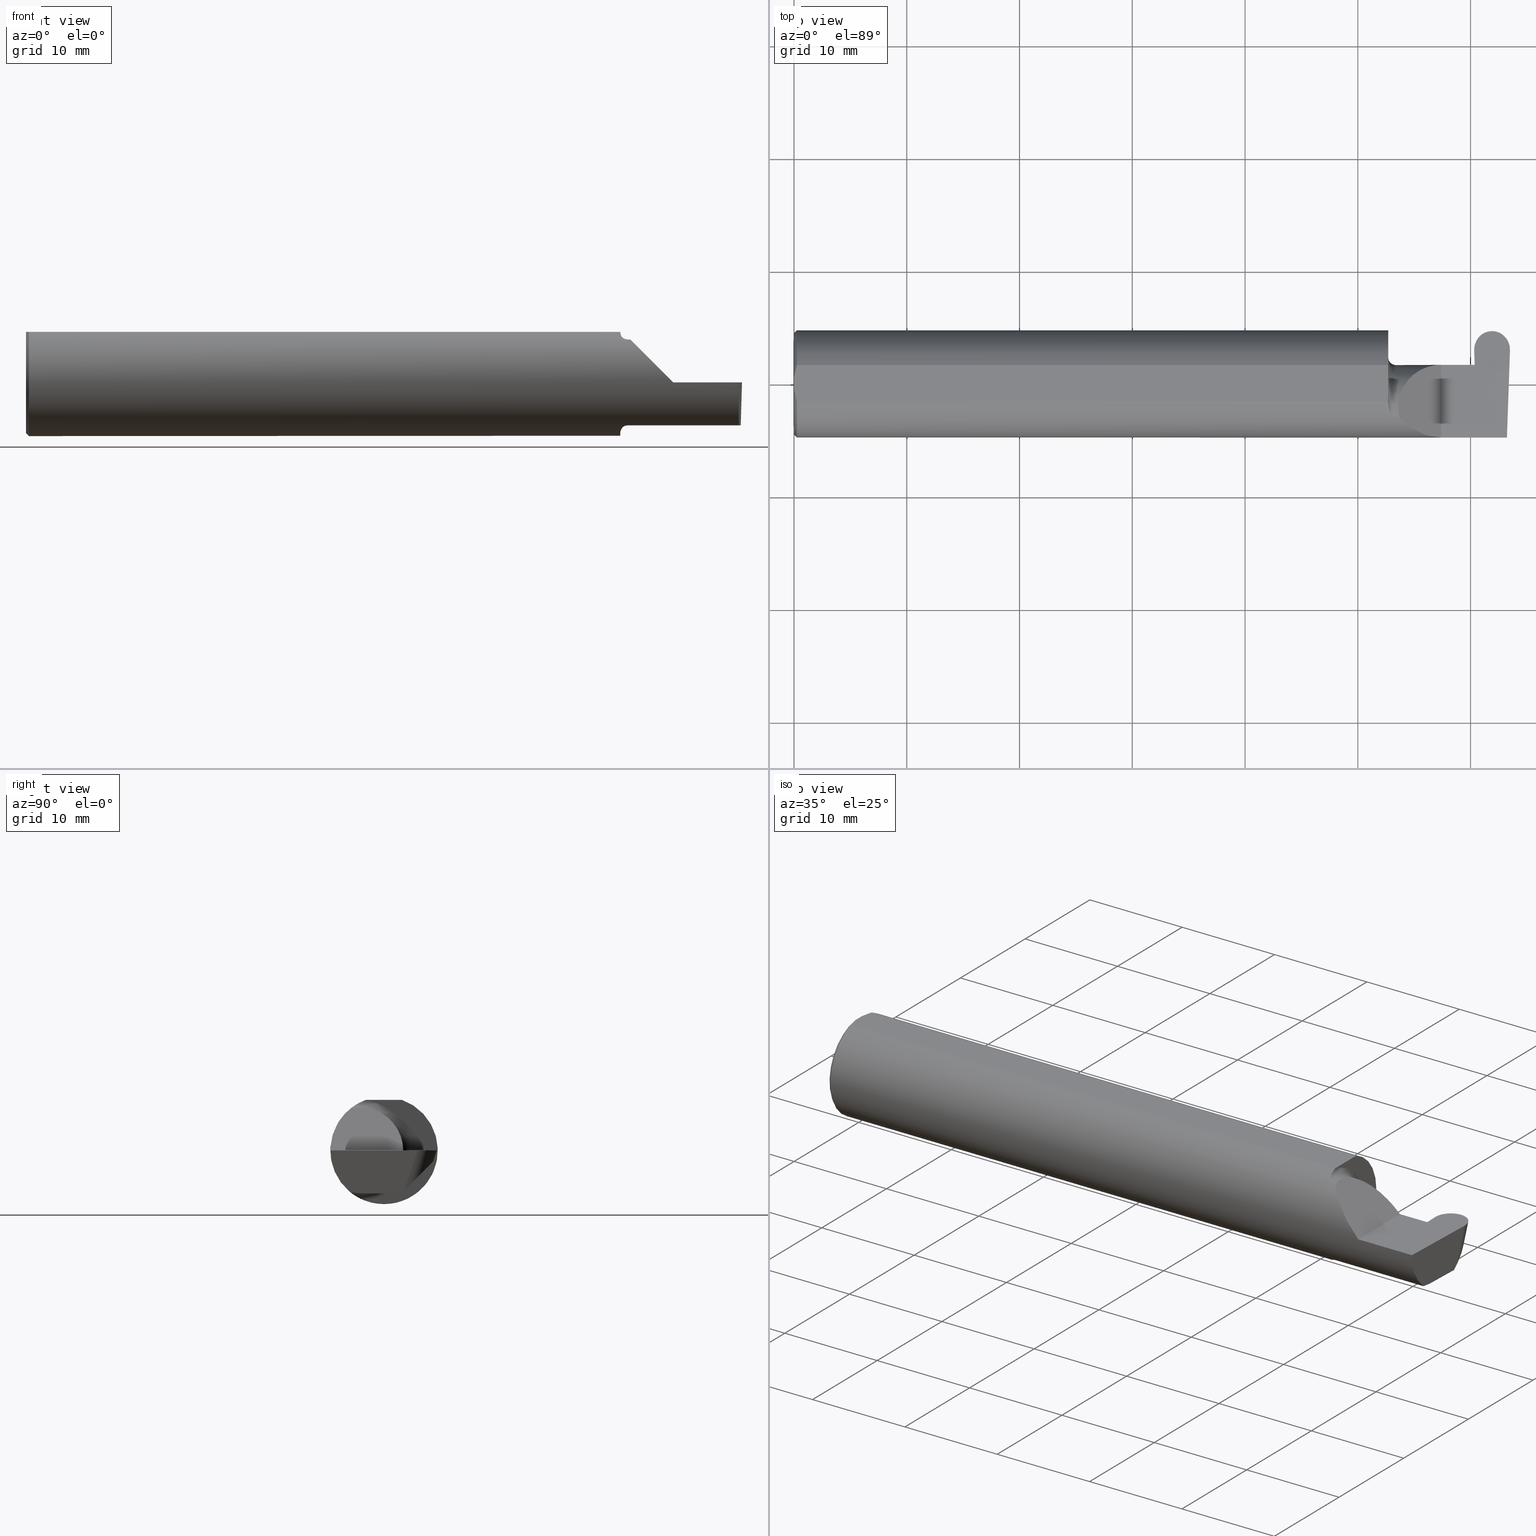
[diagram: canonical four-view strip — front | top / right | iso, engineering-drawing reading convention]
A machine part, canonical four-view strip (front | top / right | iso — engineering-drawing reading convention). The complete STEP part file that produces these views, byte-faithful:
ISO-10303-21;
HEADER;
FILE_DESCRIPTION (( 'STEP AP203' ),
    '1' );
FILE_NAME ('222206-GFR124-6.STEP',
    '2024-06-28T18:57:38',
    ( '' ),
    ( '' ),
    'SwSTEP 2.0',
    'SolidWorks 2024',
    '' );
FILE_SCHEMA (( 'CONFIG_CONTROL_DESIGN' ));
ENDSEC;

DATA;
#1 = CARTESIAN_POINT ( 'NONE',  ( 2.367467983378090057, 0.06661954135095479734, -0.001744974835126142116 ) ) ;
#2 = DIRECTION ( 'NONE',  ( -0.03489949670249638952, 0.9993908270190959842, 0.000000000000000000 ) ) ;
#3 = VERTEX_POINT ( 'NONE', #136 ) ;
#4 = CARTESIAN_POINT ( 'NONE',  ( 0.009999999999999346217, 0.06325108694718235836, 0.1763499999999999235 ) ) ;
#5 = PLANE ( 'NONE',  #91 ) ;
#6 = ORIENTED_EDGE ( 'NONE', *, *, #312, .F. ) ;
#7 = EDGE_CURVE ( 'NONE', #3, #99, #193, .T. ) ;
#8 = DIRECTION ( 'NONE',  ( -0.01806954526206913311, 0.01744955702544860598, 0.9996844524616943506 ) ) ;
#9 = VECTOR ( 'NONE', #116, 39.37007874015748143 ) ;
#10 = LOCAL_TIME ( 11, 57, 38.00000000000000000, #473 ) ;
#11 = CARTESIAN_POINT ( 'NONE',  ( 0.000000000000000000, 0.01880691362239451242, 0.1763499999999999235 ) ) ;
#12 =( BOUNDED_CURVE ( )  B_SPLINE_CURVE ( 3, ( #490, #353, #678, #235 ),
 .UNSPECIFIED., .F., .F. ) 
 B_SPLINE_CURVE_WITH_KNOTS ( ( 4, 4 ),
 ( 3.135912951325162457, 4.726229945297544255 ),
 .UNSPECIFIED. ) 
 CURVE ( )  GEOMETRIC_REPRESENTATION_ITEM ( )  RATIONAL_B_SPLINE_CURVE ( ( 1.000000000000000000, 0.8001144080103665956, 0.8001144080103665956, 1.000000000000000000 ) ) 
 REPRESENTATION_ITEM ( '' )  );
#13 = ORIENTED_EDGE ( 'NONE', *, *, #497, .F. ) ;
#14 = CARTESIAN_POINT ( 'NONE',  ( 2.490246926064548560, -0.08334999999999932740, -0.1500000000000000500 ) ) ;
#15 = LINE ( 'NONE', #433, #77 ) ;
#16 = ORIENTED_EDGE ( 'NONE', *, *, #398, .T. ) ;
#17 = CARTESIAN_POINT ( 'NONE',  ( 2.367407066079999733, 0.06655862405286432082, -0.005234924505378421578 ) ) ;
#18 = FACE_OUTER_BOUND ( 'NONE', #633, .T. ) ;
#19 = ORIENTED_EDGE ( 'NONE', *, *, #379, .F. ) ;
#20 = PLANE ( 'NONE',  #66 ) ;
#21 = ADVANCED_BREP_SHAPE_REPRESENTATION ( '222206-GFR124-6', ( #174, #246 ), #92 ) ;
#23 = CYLINDRICAL_SURFACE ( 'NONE', #656, 0.1873499999999999888 ) ;
#22 = VECTOR ( 'NONE', #451, 39.37007874015748143 ) ;
#24 = AXIS2_PLACEMENT_3D ( 'NONE', #457, #182, #352 ) ;
#25 = ORIENTED_EDGE ( 'NONE', *, *, #629, .F. ) ;
#26 = EDGE_CURVE ( 'NONE', #346, #449, #270, .T. ) ;
#27 = ADVANCED_FACE ( 'NONE', ( #679 ), #298, .T. ) ;
#28 = CARTESIAN_POINT ( 'NONE',  ( 2.399346682163034483, 0.1846500000000000363, 1.238963249943321985E-17 ) ) ;
#29 = CARTESIAN_POINT ( 'NONE',  ( 2.490542817754151539, -0.07487677063221309659, -0.1500000000000000500 ) ) ;
#30 = CARTESIAN_POINT ( 'NONE',  ( 2.113883229301068312, -0.1172600179964004702, 0.1461167706989303927 ) ) ;
#31 = LINE ( 'NONE', #303, #620 ) ;
#32 = CARTESIAN_POINT ( 'NONE',  ( 2.374762147380223620, 0.1198259601510516803, 0.000000000000000000 ) ) ;
#33 = CARTESIAN_POINT ( 'NONE',  ( 2.100000000000000089, -0.1172600179964002620, -0.1461167706989305870 ) ) ;
#34 = CARTESIAN_POINT ( 'NONE',  ( 2.374857090704703300, 0.1171071390637349607, 0.000000000000000000 ) ) ;
#35 = EDGE_CURVE ( 'NONE', #542, #491, #694, .T. ) ;
#36 = LINE ( 'NONE', #32, #632 ) ;
#37 = AXIS2_PLACEMENT_3D ( 'NONE', #455, #505, #560 ) ;
#38 = VECTOR ( 'NONE', #243, 39.37007874015748143 ) ;
#39 = CARTESIAN_POINT ( 'NONE',  ( -3.937007874019685528E-05, 0.1723030515431495657, -0.03799999999999999906 ) ) ;
#40 = ORIENTED_EDGE ( 'NONE', *, *, #358, .F. ) ;
#41 = CARTESIAN_POINT ( 'NONE',  ( 2.100000000000000089, -0.1172600179964002620, -0.1461167706989305870 ) ) ;
#42 = ORIENTED_EDGE ( 'NONE', *, *, #570, .T. ) ;
#43 = DATE_TIME_ROLE ( 'classification_date' ) ;
#44 = DIRECTION ( 'NONE',  ( -0.01806954526206913311, 0.01744955702544860598, 0.9996844524616943506 ) ) ;
#45 = VECTOR ( 'NONE', #385, 39.37007874015748143 ) ;
#46 = ORIENTED_EDGE ( 'NONE', *, *, #252, .F. ) ;
#47 = EDGE_CURVE ( 'NONE', #391, #206, #703, .T. ) ;
#48 = CARTESIAN_POINT ( 'NONE',  ( 2.113883229301068312, -0.1172600179964004702, 0.1461167706989303927 ) ) ;
#49 = VERTEX_POINT ( 'NONE', #190 ) ;
#50 = COORDINATED_UNIVERSAL_TIME_OFFSET ( 8, 0, .BEHIND. ) ;
#51 = CARTESIAN_POINT ( 'NONE',  ( 2.376870704983649496, 0.1941529779698624170, -0.01615007357328690149 ) ) ;
#52 = ORIENTED_EDGE ( 'NONE', *, *, #527, .T. ) ;
#53 = CALENDAR_DATE ( 2024, 28, 6 ) ;
#54 = CARTESIAN_POINT ( 'NONE',  ( 2.379376900814294871, -0.08346159389558670261, -0.1500000000000000500 ) ) ;
#55 = EDGE_CURVE ( 'NONE', #397, #206, #553, .T. ) ;
#56 = VERTEX_POINT ( 'NONE', #437 ) ;
#57 = CARTESIAN_POINT ( 'NONE',  ( 0.000000000000000000, 0.000000000000000000, -0.1773500000000005072 ) ) ;
#58 = VERTEX_POINT ( 'NONE', #548 ) ;
#59 = CARTESIAN_POINT ( 'NONE',  ( 2.374834014638854018, 0.1173673719240848484, 0.0008009143901308528714 ) ) ;
#60 = DIRECTION ( 'NONE',  ( 0.000000000000000000, 0.000000000000000000, -1.000000000000000000 ) ) ;
#61 = ORIENTED_EDGE ( 'NONE', *, *, #251, .T. ) ;
#62 = CARTESIAN_POINT ( 'NONE',  ( 2.237361995000000103, -0.1172600179964005118, 0.1461167706989304482 ) ) ;
#63 = CARTESIAN_POINT ( 'NONE',  ( 2.376713715390371462, 0.06655862405286659678, -0.005234924505376353787 ) ) ;
#64 = VERTEX_POINT ( 'NONE', #11 ) ;
#65 = DIRECTION ( 'NONE',  ( 0.000000000000000000, 1.000000000000000000, 0.000000000000000000 ) ) ;
#66 = AXIS2_PLACEMENT_3D ( 'NONE', #131, #510, #677 ) ;
#67 = CARTESIAN_POINT ( 'NONE',  ( 2.083475602106621860, -0.1064978748893402188, 0.1542035505680386387 ) ) ;
#68 = ORIENTED_EDGE ( 'NONE', *, *, #146, .T. ) ;
#69 = FACE_OUTER_BOUND ( 'NONE', #318, .T. ) ;
#70 = DIRECTION ( 'NONE',  ( 0.9992386149554828290, 0.03489418134010909001, 0.01745240643728358798 ) ) ;
#71 = ORIENTED_EDGE ( 'NONE', *, *, #261, .F. ) ;
#72 = DIRECTION ( 'NONE',  ( 1.000000000000000000, 0.000000000000000000, 0.000000000000000000 ) ) ;
#73 = CARTESIAN_POINT ( 'NONE',  ( 2.376619092827160884, 0.06665000000000001479, 0.000000000000000000 ) ) ;
#74 = ADVANCED_FACE ( 'NONE', ( #496 ), #654, .F. ) ;
#75 = ADVANCED_FACE ( 'NONE', ( #18 ), #163, .F. ) ;
#76 = ORIENTED_EDGE ( 'NONE', *, *, #406, .F. ) ;
#77 = VECTOR ( 'NONE', #213, 39.37007874015748143 ) ;
#79 = CARTESIAN_POINT ( 'NONE',  ( 2.367407066079999733, 0.06655862405286432082, -0.005234924505378421578 ) ) ;
#78 = CONICAL_SURFACE ( 'NONE', #383, 0.1773500000000005072, 0.7853981633974551624 ) ;
#80 = VECTOR ( 'NONE', #543, 39.37007874015748143 ) ;
#81 = ORIENTED_EDGE ( 'NONE', *, *, #107, .F. ) ;
#82 = APPLICATION_PROTOCOL_DEFINITION ( 'international standard', 'config_control_design', 1994, #610 ) ;
#83 = LINE ( 'NONE', #301, #38 ) ;
#84 = ADVANCED_FACE ( 'NONE', ( #396 ), #227, .F. ) ;
#85 = CARTESIAN_POINT ( 'NONE',  ( 2.075000000000000178, -0.08335000000000010456, 0.000000000000000000 ) ) ;
#86 = EDGE_CURVE ( 'NONE', #106, #491, #15, .T. ) ;
#87 = CARTESIAN_POINT ( 'NONE',  ( 0.000000000000000000, 0.000000000000000000, 0.000000000000000000 ) ) ;
#88 = CARTESIAN_POINT ( 'NONE',  ( 0.000000000000000000, -0.01880691362239451242, 0.1763499999999999235 ) ) ;
#89 = DIRECTION ( 'NONE',  ( 0.000000000000000000, -0.7071067811865516806, 0.7071067811865434649 ) ) ;
#90 = FACE_OUTER_BOUND ( 'NONE', #195, .T. ) ;
#91 = AXIS2_PLACEMENT_3D ( 'NONE', #175, #386, #218 ) ;
#92 =( GEOMETRIC_REPRESENTATION_CONTEXT ( 3 ) GLOBAL_UNCERTAINTY_ASSIGNED_CONTEXT ( ( #370 ) ) GLOBAL_UNIT_ASSIGNED_CONTEXT ( ( #233, #613, #552 ) ) REPRESENTATION_CONTEXT ( 'NONE', 'WORKASPACE' ) );
#93 = CC_DESIGN_PERSON_AND_ORGANIZATION_ASSIGNMENT ( #465, #192, ( #541 ) ) ;
#94 = CARTESIAN_POINT ( 'NONE',  ( 2.437361994999999837, 0.1742461545025663638, -0.03201743511553396121 ) ) ;
#95 = VERTEX_POINT ( 'NONE', #278 ) ;
#96 =( BOUNDED_CURVE ( )  B_SPLINE_CURVE ( 3, ( #639, #207, #94, #150 ),
 .UNSPECIFIED., .F., .F. ) 
 B_SPLINE_CURVE_WITH_KNOTS ( ( 4, 4 ),
 ( 4.712388980384692339, 4.720665141031028966 ),
 .UNSPECIFIED. ) 
 CURVE ( )  GEOMETRIC_REPRESENTATION_ITEM ( )  RATIONAL_B_SPLINE_CURVE ( ( 1.000000000000000000, 0.9999942921052247247, 0.9999942921052247247, 1.000000000000000000 ) ) 
 REPRESENTATION_ITEM ( '' )  );
#97 = COORDINATED_UNIVERSAL_TIME_OFFSET ( 8, 0, .BEHIND. ) ;
#98 = CARTESIAN_POINT ( 'NONE',  ( 2.490246926064548560, -0.08334999999999932740, -0.1500000000000000500 ) ) ;
#99 = VERTEX_POINT ( 'NONE', #390 ) ;
#100 = DATE_TIME_ROLE ( 'creation_date' ) ;
#101 = DIRECTION ( 'NONE',  ( 0.000000000000000000, 0.000000000000000000, -1.000000000000000000 ) ) ;
#102 = AXIS2_PLACEMENT_3D ( 'NONE', #539, #596, #661 ) ;
#103 = EDGE_LOOP ( 'NONE', ( #365, #439, #430 ) ) ;
#104 = DATE_AND_TIME ( #264, #395 ) ;
#105 = CARTESIAN_POINT ( 'NONE',  ( 0.000000000000000000, 0.000000000000000000, 0.000000000000000000 ) ) ;
#106 = VERTEX_POINT ( 'NONE', #171 ) ;
#107 = EDGE_CURVE ( 'NONE', #391, #58, #161, .T. ) ;
#108 = DIRECTION ( 'NONE',  ( -1.000000000000000000, -3.417954624266474541E-16, -0.000000000000000000 ) ) ;
#109 = ORIENTED_EDGE ( 'NONE', *, *, #568, .T. ) ;
#110 = CARTESIAN_POINT ( 'NONE',  ( 3.749399456654646757E-32, -0.1873499999999999610, 3.061616997868383634E-16 ) ) ;
#111 = ORIENTED_EDGE ( 'NONE', *, *, #7, .T. ) ;
#112 = CONICAL_SURFACE ( 'NONE', #188, 0.1773500000000005072, 0.7853981633974551624 ) ;
#113 = DIRECTION ( 'NONE',  ( 1.000000000000000000, 3.417954624266474541E-16, 0.000000000000000000 ) ) ;
#114 = PLANE ( 'NONE',  #456 ) ;
#115 = ORIENTED_EDGE ( 'NONE', *, *, #416, .F. ) ;
#116 = DIRECTION ( 'NONE',  ( -1.000000000000000000, -0.000000000000000000, -0.000000000000000000 ) ) ;
#117 = CARTESIAN_POINT ( 'NONE',  ( 2.379376865616626535, -0.08334999999999999354, -0.1500000000000000500 ) ) ;
#118 = ORIENTED_EDGE ( 'NONE', *, *, #228, .F. ) ;
#119 = DIRECTION ( 'NONE',  ( 1.000000000000000000, 3.417954624266474541E-16, 0.000000000000000000 ) ) ;
#120 = CARTESIAN_POINT ( 'NONE',  ( 2.075000000000000178, -0.06851976604679038685, -0.1743704796142199753 ) ) ;
#121 = ORIENTED_EDGE ( 'NONE', *, *, #358, .T. ) ;
#122 = DIRECTION ( 'NONE',  ( 1.000000000000000000, -0.000000000000000000, -0.000000000000000000 ) ) ;
#123 = AXIS2_PLACEMENT_3D ( 'NONE', #589, #113, #65 ) ;
#124 = CARTESIAN_POINT ( 'NONE',  ( 2.374762147380223620, 0.1198259601510516803, 0.000000000000000000 ) ) ;
#125 = ORIENTED_EDGE ( 'NONE', *, *, #570, .F. ) ;
#126 = ADVANCED_FACE ( 'NONE', ( #286 ), #114, .F. ) ;
#127 = CARTESIAN_POINT ( 'NONE',  ( 2.260000000000000231, 0.06665000000000001479, 5.204748896376252548E-17 ) ) ;
#128 = ADVANCED_FACE ( 'NONE', ( #593 ), #5, .T. ) ;
#129 = CARTESIAN_POINT ( 'NONE',  ( 2.090028532764138802, -0.1137241120808232947, -0.1488947809299406011 ) ) ;
#130 = VERTEX_POINT ( 'NONE', #659 ) ;
#131 = CARTESIAN_POINT ( 'NONE',  ( -3.937007874019685528E-05, 0.1846500000000000363, 0.000000000000000000 ) ) ;
#132 = DIRECTION ( 'NONE',  ( 1.000000000000000000, -9.360105070766659852E-16, -0.000000000000000000 ) ) ;
#133 = CARTESIAN_POINT ( 'NONE',  ( 2.150065971957464850, -0.1623470442677541759, 0.1099340280425337851 ) ) ;
#134 = CARTESIAN_POINT ( 'NONE',  ( 0.000000000000000000, 0.000000000000000000, 0.000000000000000000 ) ) ;
#135 = APPROVAL_PERSON_ORGANIZATION ( #645, #259, #157 ) ;
#136 = CARTESIAN_POINT ( 'NONE',  ( 2.260000000000000231, -0.1873499999999999888, 2.939152317953647352E-17 ) ) ;
#137 = DIRECTION ( 'NONE',  ( 0.000000000000000000, 0.000000000000000000, -1.000000000000000000 ) ) ;
#138 = CARTESIAN_POINT ( 'NONE',  ( 2.075000000000000622, 0.06655862405286504246, -0.005234924505354759082 ) ) ;
#139 = ORIENTED_EDGE ( 'NONE', *, *, #431, .T. ) ;
#140 = DIRECTION ( 'NONE',  ( -3.417954624266474541E-16, 1.000000000000000000, 0.000000000000000000 ) ) ;
#141 = CARTESIAN_POINT ( 'NONE',  ( 2.488225324098681579, -0.1873500000000000165, -0.05781030015605125721 ) ) ;
#142 = PERSON_AND_ORGANIZATION ( #438, #646 ) ;
#143 = CARTESIAN_POINT ( 'NONE',  ( 2.374857090704703300, 0.1171071390637349607, 0.000000000000000000 ) ) ;
#144 = ORIENTED_EDGE ( 'NONE', *, *, #55, .T. ) ;
#145 = CALENDAR_DATE ( 2024, 28, 6 ) ;
#146 = EDGE_CURVE ( 'NONE', #211, #184, #561, .T. ) ;
#147 = CARTESIAN_POINT ( 'NONE',  ( 2.475377307836965635, 0.1846499999999998975, 3.884071369074584472E-18 ) ) ;
#148 = ORIENTED_EDGE ( 'NONE', *, *, #168, .F. ) ;
#149 = APPROVAL_ROLE ( '' ) ;
#150 = CARTESIAN_POINT ( 'NONE',  ( 2.437361994999999837, 0.1722997177119685586, -0.03800333383118100622 ) ) ;
#151 = ORIENTED_EDGE ( 'NONE', *, *, #7, .F. ) ;
#152 = PERSON_AND_ORGANIZATION ( #438, #646 ) ;
#153 = PLANE ( 'NONE',  #567 ) ;
#154 = AXIS2_PLACEMENT_3D ( 'NONE', #362, #304, #292 ) ;
#155 = EDGE_CURVE ( 'NONE', #449, #394, #12, .T. ) ;
#156 = VERTEX_POINT ( 'NONE', #281 ) ;
#157 = APPROVAL_ROLE ( '' ) ;
#158 = ORIENTED_EDGE ( 'NONE', *, *, #306, .T. ) ;
#159 = CARTESIAN_POINT ( 'NONE',  ( 2.075000000000000178, -0.06851976604679038685, 0.1743704796142199753 ) ) ;
#160 = ORIENTED_EDGE ( 'NONE', *, *, #424, .F. ) ;
#161 = B_SPLINE_CURVE_WITH_KNOTS ( 'NONE', 3,
 ( #671, #338, #223, #599, #544, #231, #67, #441, #180, #429, #484, #382 ),
 .UNSPECIFIED., .F., .F.,
 ( 4, 2, 2, 2, 2, 4 ),
 ( 4.423516731081017750E-05, 0.0004615475116586720055, 0.0008788598560065338404, 0.001296172200354395784, 0.001504828372528326701, 0.001713484544702257618 ),
 .UNSPECIFIED. ) ;
#162 = DIRECTION ( 'NONE',  ( 0.02739170151060085767, -0.3089010440752013587, -0.9506996579664918068 ) ) ;
#163 = PLANE ( 'NONE',  #316 ) ;
#164 = CLOSED_SHELL ( 'NONE', ( #640, #327, #198, #687, #177, #506, #126, #368, #651, #601, #128, #74, #707, #653, #75, #84, #466, #27, #487 ) ) ;
#165 = ORIENTED_EDGE ( 'NONE', *, *, #215, .T. ) ;
#166 = VECTOR ( 'NONE', #162, 39.37007874015748143 ) ;
#167 = LINE ( 'NONE', #57, #80 ) ;
#168 = EDGE_CURVE ( 'NONE', #529, #690, #356, .T. ) ;
#169 = VERTEX_POINT ( 'NONE', #297 ) ;
#170 = CARTESIAN_POINT ( 'NONE',  ( 2.367498442027135663, 0.06665000000000002867, 0.000000000000000000 ) ) ;
#171 = CARTESIAN_POINT ( 'NONE',  ( 2.075000000000000178, 0.06325108694718235836, 0.1763499999999999235 ) ) ;
#172 = ORIENTED_EDGE ( 'NONE', *, *, #228, .T. ) ;
#173 = CARTESIAN_POINT ( 'NONE',  ( 0.009999999999999346217, 0.06325108694718235836, 0.1763499999999999235 ) ) ;
#174 = MANIFOLD_SOLID_BREP ( 'Radii', #164 ) ;
#175 = CARTESIAN_POINT ( 'NONE',  ( 2.075000000000000178, 0.1873499999999999610, 0.000000000000000000 ) ) ;
#176 = ORIENTED_EDGE ( 'NONE', *, *, #617, .T. ) ;
#177 = ADVANCED_FACE ( 'NONE', ( #90 ), #308, .F. ) ;
#178 = AXIS2_PLACEMENT_3D ( 'NONE', #134, #508, #631 ) ;
#179 = DIRECTION ( 'NONE',  ( -0.7071067811865441310, 0.000000000000000000, -0.7071067811865510144 ) ) ;
#180 = CARTESIAN_POINT ( 'NONE',  ( 2.090004157323697598, -0.1137044537483313106, 0.1489098419202430912 ) ) ;
#181 = ORIENTED_EDGE ( 'NONE', *, *, #568, .F. ) ;
#182 = DIRECTION ( 'NONE',  ( -1.000000000000000000, -3.417954624266474541E-16, -0.000000000000000000 ) ) ;
#183 = FACE_OUTER_BOUND ( 'NONE', #498, .T. ) ;
#184 = VERTEX_POINT ( 'NONE', #240 ) ;
#185 = EDGE_CURVE ( 'NONE', #287, #517, #336, .T. ) ;
#186 = CARTESIAN_POINT ( 'NONE',  ( 2.379376865616626535, -0.08334999999999999354, -0.1500000000000000500 ) ) ;
#187 = CARTESIAN_POINT ( 'NONE',  ( 2.375802096645578398, 0.1301396316170285450, -0.08016341992612147083 ) ) ;
#189 = CARTESIAN_POINT ( 'NONE',  ( 0.009999999999999346217, -0.06325108694718235836, 0.1763499999999999235 ) ) ;
#188 = AXIS2_PLACEMENT_3D ( 'NONE', #87, #72, #137 ) ;
#190 = CARTESIAN_POINT ( 'NONE',  ( 2.437361994999999393, 0.1781371089828285015, -0.02004461746296542710 ) ) ;
#191 = LINE ( 'NONE', #29, #22 ) ;
#192 = PERSON_AND_ORGANIZATION_ROLE ( 'design_owner' ) ;
#193 =( BOUNDED_CURVE ( )  B_SPLINE_CURVE ( 3, ( #400, #615, #133, #30 ),
 .UNSPECIFIED., .F., .F. ) 
 B_SPLINE_CURVE_WITH_KNOTS ( ( 4, 4 ),
 ( 4.712388980384688786, 5.606916381293137519 ),
 .UNSPECIFIED. ) 
 CURVE ( )  GEOMETRIC_REPRESENTATION_ITEM ( )  RATIONAL_B_SPLINE_CURVE ( ( 1.000000000000000000, 0.9344226172588800949, 0.9344226172588800949, 1.000000000000000000 ) ) 
 REPRESENTATION_ITEM ( '' )  );
#194 = CARTESIAN_POINT ( 'NONE',  ( 0.001595548104417217512, -0.03385300050298979679, 0.1763499999999999235 ) ) ;
#195 = EDGE_LOOP ( 'NONE', ( #418, #638, #71, #148, #329, #118, #549, #160, #460 ) ) ;
#196 = EDGE_CURVE ( 'NONE', #56, #130, #563, .T. ) ;
#197 = SHAPE_DEFINITION_REPRESENTATION ( #485, #21 ) ;
#198 = ADVANCED_FACE ( 'NONE', ( #183 ), #23, .T. ) ;
#199 = DIRECTION ( 'NONE',  ( 0.01806679408117584443, 0.000000000000000000, -0.9998367821557817559 ) ) ;
#200 = VECTOR ( 'NONE', #44, 39.37007874015748854 ) ;
#201 = EDGE_LOOP ( 'NONE', ( #535, #25, #109, #263 ) ) ;
#202 = PERSON_AND_ORGANIZATION ( #438, #646 ) ;
#203 = CARTESIAN_POINT ( 'NONE',  ( 2.260000000000000231, 0.06665000000000001479, 5.204748896376252548E-17 ) ) ;
#204 = ORIENTED_EDGE ( 'NONE', *, *, #276, .T. ) ;
#205 = DIRECTION ( 'NONE',  ( -1.000000000000000000, -3.417954624266474541E-16, -0.000000000000000000 ) ) ;
#206 = VERTEX_POINT ( 'NONE', #511 ) ;
#207 = CARTESIAN_POINT ( 'NONE',  ( 2.437361994999999837, 0.1761919626993214971, -0.02603116215711245157 ) ) ;
#208 = VECTOR ( 'NONE', #122, 39.37007874015748143 ) ;
#209 = ORIENTED_EDGE ( 'NONE', *, *, #591, .T. ) ;
#210 = CARTESIAN_POINT ( 'NONE',  ( 2.376619092827160884, 0.06665000000000001479, 0.000000000000000000 ) ) ;
#211 = VERTEX_POINT ( 'NONE', #186 ) ;
#212 = CYLINDRICAL_SURFACE ( 'NONE', #102, 0.1500000000000000777 ) ;
#213 = DIRECTION ( 'NONE',  ( -1.000000000000000000, -0.000000000000000000, -0.000000000000000000 ) ) ;
#214 = ORIENTED_EDGE ( 'NONE', *, *, #446, .T. ) ;
#215 = EDGE_CURVE ( 'NONE', #130, #49, #410, .T. ) ;
#216 = LINE ( 'NONE', #62, #557 ) ;
#217 = EDGE_CURVE ( 'NONE', #64, #169, #232, .T. ) ;
#218 = DIRECTION ( 'NONE',  ( -3.417954624266474541E-16, 1.000000000000000000, 0.000000000000000000 ) ) ;
#219 = ORIENTED_EDGE ( 'NONE', *, *, #497, .T. ) ;
#220 = VECTOR ( 'NONE', #513, 39.37007874015748143 ) ;
#221 = PRODUCT_DEFINITION_FORMATION_WITH_SPECIFIED_SOURCE ( 'ANY', '', #541, .NOT_KNOWN. ) ;
#222 = CARTESIAN_POINT ( 'NONE',  ( 2.876828993045917215, 0.1873499999999998500, 0.1763499999999999235 ) ) ;
#223 = CARTESIAN_POINT ( 'NONE',  ( 2.075353553376444893, -0.07868116735658646499, 0.1701139256562801683 ) ) ;
#224 = ORIENTED_EDGE ( 'NONE', *, *, #663, .F. ) ;
#225 = CC_DESIGN_PERSON_AND_ORGANIZATION_ASSIGNMENT ( #635, #267, ( #685 ) ) ;
#226 = CARTESIAN_POINT ( 'NONE',  ( 0.000000000000000000, -0.01880691362239451242, 0.1763499999999999235 ) ) ;
#227 = PLANE ( 'NONE',  #681 ) ;
#228 = EDGE_CURVE ( 'NONE', #3, #641, #554, .T. ) ;
#229 = VERTEX_POINT ( 'NONE', #143 ) ;
#230 = LINE ( 'NONE', #432, #351 ) ;
#231 = CARTESIAN_POINT ( 'NONE',  ( 2.081287624083520527, -0.1021858045380142216, 0.1571187174372876694 ) ) ;
#232 = CIRCLE ( 'NONE', #178, 0.1773500000000005072 ) ;
#233 =( CONVERSION_BASED_UNIT ( 'INCH', #608 ) LENGTH_UNIT ( ) NAMED_UNIT ( #626 ) );
#234 = AXIS2_PLACEMENT_3D ( 'NONE', #468, #364, #372 ) ;
#235 = CARTESIAN_POINT ( 'NONE',  ( 2.495889335989002866, 0.07225145685232282899, -0.1380515946908279223 ) ) ;
#236 = APPLICATION_CONTEXT ( 'configuration controlled 3d designs of mechanical parts and assemblies' ) ;
#237 = APPROVAL ( #254, 'UNSPECIFIED' ) ;
#238 = VERTEX_POINT ( 'NONE', #79 ) ;
#239 = CARTESIAN_POINT ( 'NONE',  ( 2.376619092827160884, 0.06665000000000001479, 0.000000000000000000 ) ) ;
#240 = CARTESIAN_POINT ( 'NONE',  ( 2.376713715390371462, 0.06655862405286659678, -0.005234924505376353787 ) ) ;
#241 = CARTESIAN_POINT ( 'NONE',  ( 0.009999999999999346217, 0.000000000000000000, 0.000000000000000000 ) ) ;
#242 = PLANE ( 'NONE',  #283 ) ;
#243 = DIRECTION ( 'NONE',  ( -0.03701744261649830836, -0.7066221440565397804, -0.7066221440565479961 ) ) ;
#244 = CARTESIAN_POINT ( 'NONE',  ( 2.097174967710399685, -0.1172600179964003730, -0.1461167706989306703 ) ) ;
#245 = FACE_OUTER_BOUND ( 'NONE', #321, .T. ) ;
#247 = DIRECTION ( 'NONE',  ( -1.000000000000000000, -3.417954624266474541E-16, -0.000000000000000000 ) ) ;
#246 = AXIS2_PLACEMENT_3D ( 'NONE', #622, #355, #562 ) ;
#248 = CARTESIAN_POINT ( 'NONE',  ( 2.436784466467367682, 0.1846500000000000363, 0.000000000000000000 ) ) ;
#249 = LINE ( 'NONE', #315, #592 ) ;
#250 =( BOUNDED_CURVE ( )  B_SPLINE_CURVE ( 3, ( #566, #573, #147, #643 ),
 .UNSPECIFIED., .F., .F. ) 
 B_SPLINE_CURVE_WITH_KNOTS ( ( 4, 4 ),
 ( 1.627103621474502271, 3.225696776093221807 ),
 .UNSPECIFIED. ) 
 CURVE ( )  GEOMETRIC_REPRESENTATION_ITEM ( )  RATIONAL_B_SPLINE_CURVE ( ( 1.000000000000000000, 0.7981407609938093728, 0.7981407609938093728, 1.000000000000000000 ) ) 
 REPRESENTATION_ITEM ( '' )  );
#251 = EDGE_CURVE ( 'NONE', #156, #600, #191, .T. ) ;
#252 = EDGE_CURVE ( 'NONE', #287, #95, #401, .T. ) ;
#253 = ORIENTED_EDGE ( 'NONE', *, *, #326, .F. ) ;
#254 = APPROVAL_STATUS ( 'not_yet_approved' ) ;
#255 = PLANE ( 'NONE',  #534 ) ;
#256 = ORIENTED_EDGE ( 'NONE', *, *, #516, .F. ) ;
#257 = CARTESIAN_POINT ( 'NONE',  ( 2.155331797197863164, 0.06664999999999995928, 0.1046682028021360261 ) ) ;
#258 = VECTOR ( 'NONE', #347, 39.37007874015748143 ) ;
#259 = APPROVAL ( #530, 'UNSPECIFIED' ) ;
#260 = VERTEX_POINT ( 'NONE', #559 ) ;
#261 = EDGE_CURVE ( 'NONE', #690, #229, #36, .T. ) ;
#262 = CARTESIAN_POINT ( 'NONE',  ( 2.489474166416077328, -0.1061291577212405274, -0.1486999626928447726 ) ) ;
#263 = ORIENTED_EDGE ( 'NONE', *, *, #47, .T. ) ;
#264 = CALENDAR_DATE ( 2024, 28, 6 ) ;
#265 = CARTESIAN_POINT ( 'NONE',  ( 2.495889335989002866, 0.07225145685232282899, -0.1380515946908279223 ) ) ;
#266 = ORIENTED_EDGE ( 'NONE', *, *, #516, .T. ) ;
#267 = PERSON_AND_ORGANIZATION_ROLE ( 'creator' ) ;
#268 = LINE ( 'NONE', #422, #434 ) ;
#269 = VECTOR ( 'NONE', #614, 39.37007874015748854 ) ;
#270 =( BOUNDED_CURVE ( )  B_SPLINE_CURVE ( 3, ( #349, #187, #354, #558 ),
 .UNSPECIFIED., .F., .F. ) 
 B_SPLINE_CURVE_WITH_KNOTS ( ( 4, 4 ),
 ( 1.556955361882040645, 3.147272355854425108 ),
 .UNSPECIFIED. ) 
 CURVE ( )  GEOMETRIC_REPRESENTATION_ITEM ( )  RATIONAL_B_SPLINE_CURVE ( ( 1.000000000000000000, 0.8001144080103659295, 0.8001144080103659295, 1.000000000000000000 ) ) 
 REPRESENTATION_ITEM ( '' )  );
#271 = VECTOR ( 'NONE', #569, 39.37007874015748854 ) ;
#272 = EDGE_LOOP ( 'NONE', ( #165, #664, #445 ) ) ;
#273 = DIRECTION ( 'NONE',  ( 0.000000000000000000, 0.000000000000000000, -1.000000000000000000 ) ) ;
#274 = CARTESIAN_POINT ( 'NONE',  ( 2.075358271039143609, -0.07873626113568053808, -0.1700887912276896896 ) ) ;
#275 = EDGE_LOOP ( 'NONE', ( #310, #708, #698, #621, #256 ) ) ;
#276 = EDGE_CURVE ( 'NONE', #394, #156, #83, .T. ) ;
#277 = LINE ( 'NONE', #533, #45 ) ;
#278 = CARTESIAN_POINT ( 'NONE',  ( 2.075000000000000178, -0.06325108694718283020, 0.1763499999999999235 ) ) ;
#279 = VERTEX_POINT ( 'NONE', #680 ) ;
#280 = CARTESIAN_POINT ( 'NONE',  ( 2.437286428073571543, 0.1195482582578416414, 0.001891689792461078313 ) ) ;
#281 = CARTESIAN_POINT ( 'NONE',  ( 2.495263401164272477, 0.06030305154315081240, -0.1500000000000000500 ) ) ;
#282 = ORIENTED_EDGE ( 'NONE', *, *, #594, .T. ) ;
#283 = AXIS2_PLACEMENT_3D ( 'NONE', #39, #89, #291 ) ;
#284 = LOCAL_TIME ( 11, 57, 38.00000000000000000, #575 ) ;
#285 = LINE ( 'NONE', #333, #295 ) ;
#286 = FACE_OUTER_BOUND ( 'NONE', #103, .T. ) ;
#287 = VERTEX_POINT ( 'NONE', #189 ) ;
#288 = LINE ( 'NONE', #443, #220 ) ;
#289 = CARTESIAN_POINT ( 'NONE',  ( 2.081304331342287650, -0.1022198306720688427, -0.1570962426853819982 ) ) ;
#290 = ORIENTED_EDGE ( 'NONE', *, *, #217, .F. ) ;
#291 = DIRECTION ( 'NONE',  ( 0.000000000000000000, -0.7071067811865434649, -0.7071067811865516806 ) ) ;
#292 = DIRECTION ( 'NONE',  ( -1.000000000000000000, 0.000000000000000000, 1.224646799147353947E-16 ) ) ;
#293 = ORIENTED_EDGE ( 'NONE', *, *, #185, .T. ) ;
#294 = CARTESIAN_POINT ( 'NONE',  ( 2.373483501636015180, 0.1564415835413277278, 1.555695862425156831E-17 ) ) ;
#295 = VECTOR ( 'NONE', #8, 39.37007874015748854 ) ;
#296 = SECURITY_CLASSIFICATION ( '', '', #361 ) ;
#297 = CARTESIAN_POINT ( 'NONE',  ( 0.000000000000000000, 0.000000000000000000, -0.1773500000000005072 ) ) ;
#298 = CYLINDRICAL_SURFACE ( 'NONE', #37, 0.06249999999999999306 ) ;
#299 = EDGE_CURVE ( 'NONE', #184, #238, #408, .T. ) ;
#300 = CARTESIAN_POINT ( 'NONE',  ( 2.379261785862150536, 0.06409798100085174755, -0.1462050705423013630 ) ) ;
#301 = CARTESIAN_POINT ( 'NONE',  ( 2.497703355296062355, 0.1068790843033551180, -0.1034239672397952309 ) ) ;
#302 = DIRECTION ( 'NONE',  ( -1.000000000000000000, -3.417954624266474541E-16, -0.000000000000000000 ) ) ;
#303 = CARTESIAN_POINT ( 'NONE',  ( 2.075000000000000178, 0.1873499999999995724, 0.1763499999999999235 ) ) ;
#304 = DIRECTION ( 'NONE',  ( -1.224646799147353947E-16, 0.000000000000000000, -1.000000000000000000 ) ) ;
#305 = DIRECTION ( 'NONE',  ( -0.03701744261649969614, 0.7066221440565397804, 0.7066221440565479961 ) ) ;
#306 = EDGE_CURVE ( 'NONE', #585, #538, #667, .T. ) ;
#308 = PLANE ( 'NONE',  #154 ) ;
#307 = CIRCLE ( 'NONE', #123, 0.1873499999999999888 ) ;
#309 = FACE_OUTER_BOUND ( 'NONE', #655, .T. ) ;
#310 = ORIENTED_EDGE ( 'NONE', *, *, #676, .F. ) ;
#311 = CARTESIAN_POINT ( 'NONE',  ( 2.489130585478359858, -0.1172600179964004286, -0.1461167706989304482 ) ) ;
#312 = EDGE_CURVE ( 'NONE', #279, #130, #250, .T. ) ;
#313 = ORIENTED_EDGE ( 'NONE', *, *, #546, .F. ) ;
#314 = COORDINATED_UNIVERSAL_TIME_OFFSET ( 8, 0, .BEHIND. ) ;
#315 = CARTESIAN_POINT ( 'NONE',  ( 2.237361995000000103, -0.1172600179964005118, -0.1461167706989304482 ) ) ;
#316 = AXIS2_PLACEMENT_3D ( 'NONE', #124, #70, #2 ) ;
#317 = LOCAL_TIME ( 11, 57, 38.00000000000000000, #314 ) ;
#318 = EDGE_LOOP ( 'NONE', ( #588, #343, #648, #125, #377, #574 ) ) ;
#319 = APPROVAL_STATUS ( 'not_yet_approved' ) ;
#320 = DIRECTION ( 'NONE',  ( 1.000000000000000000, 0.000000000000000000, 0.000000000000000000 ) ) ;
#321 = EDGE_LOOP ( 'NONE', ( #335, #139, #144, #494 ) ) ;
#322 = PERSON_AND_ORGANIZATION ( #438, #646 ) ;
#323 = DIRECTION ( 'NONE',  ( 0.000000000000000000, -1.000000000000000000, 0.000000000000000000 ) ) ;
#324 = ORIENTED_EDGE ( 'NONE', *, *, #155, .T. ) ;
#325 = CARTESIAN_POINT ( 'NONE',  ( 0.001616639753276218755, 0.03405189565400963680, 0.1763499999999999235 ) ) ;
#326 = EDGE_CURVE ( 'NONE', #585, #397, #249, .T. ) ;
#327 = ADVANCED_FACE ( 'NONE', ( #471 ), #153, .F. ) ;
#328 = AXIS2_PLACEMENT_3D ( 'NONE', #483, #492, #273 ) ;
#329 = ORIENTED_EDGE ( 'NONE', *, *, #619, .F. ) ;
#330 = CARTESIAN_POINT ( 'NONE',  ( 0.000000000000000000, 0.01880691362239451242, 0.1763499999999999235 ) ) ;
#331 = DIRECTION ( 'NONE',  ( 1.000000000000000000, 0.000000000000000000, 0.000000000000000000 ) ) ;
#332 = ORIENTED_EDGE ( 'NONE', *, *, #398, .F. ) ;
#333 = CARTESIAN_POINT ( 'NONE',  ( 2.376619092827160884, 0.06665000000000001479, 0.000000000000000000 ) ) ;
#334 = CARTESIAN_POINT ( 'NONE',  ( 2.379349912360630981, 0.002105059811801051999, -0.1500000000000001332 ) ) ;
#335 = ORIENTED_EDGE ( 'NONE', *, *, #107, .T. ) ;
#336 = B_SPLINE_CURVE_WITH_KNOTS ( 'NONE', 3,
 ( #459, #689, #194, #88 ),
 .UNSPECIFIED., .F., .F.,
 ( 4, 4 ),
 ( 0.009771445421851449736, 0.01092787937989102981 ),
 .UNSPECIFIED. ) ;
#337 = DIRECTION ( 'NONE',  ( -0.000000000000000000, 1.000000000000000000, -0.000000000000000000 ) ) ;
#338 = CARTESIAN_POINT ( 'NONE',  ( 2.074999999999999289, -0.07367581953296672981, 0.1723443821957855726 ) ) ;
#339 = EDGE_LOOP ( 'NONE', ( #421, #699, #176, #551 ) ) ;
#340 = APPROVAL_PERSON_ORGANIZATION ( #152, #237, #412 ) ;
#341 = FACE_OUTER_BOUND ( 'NONE', #606, .T. ) ;
#342 = CARTESIAN_POINT ( 'NONE',  ( 2.083439486659306894, -0.1064616213911155906, -0.1542305641651502135 ) ) ;
#343 = ORIENTED_EDGE ( 'NONE', *, *, #629, .T. ) ;
#344 = FACE_OUTER_BOUND ( 'NONE', #611, .T. ) ;
#345 = DIRECTION ( 'NONE',  ( 1.000000000000000000, 0.000000000000000000, -0.000000000000000000 ) ) ;
#346 = VERTEX_POINT ( 'NONE', #420 ) ;
#347 = DIRECTION ( 'NONE',  ( 1.000000000000000000, -0.000000000000000000, -0.000000000000000000 ) ) ;
#348 = EDGE_CURVE ( 'NONE', #169, #517, #658, .T. ) ;
#349 = CARTESIAN_POINT ( 'NONE',  ( 2.378834654010996807, 0.07225145685232263471, -0.1380515946908280611 ) ) ;
#350 = VECTOR ( 'NONE', #454, 39.37007874015748143 ) ;
#351 = VECTOR ( 'NONE', #337, 39.37007874015748143 ) ;
#352 = DIRECTION ( 'NONE',  ( 3.417954624266474048E-16, -1.000000000000000000, 0.000000000000000000 ) ) ;
#353 = CARTESIAN_POINT ( 'NONE',  ( 2.474538988275241991, 0.1718204462013805112, -0.03848260534176906750 ) ) ;
#354 = CARTESIAN_POINT ( 'NONE',  ( 2.400185001724758571, 0.1718204462013805389, -0.03848260534176901893 ) ) ;
#355 = DIRECTION ( 'NONE',  ( 0.000000000000000000, 0.000000000000000000, 1.000000000000000000 ) ) ;
#356 = LINE ( 'NONE', #73, #555 ) ;
#357 = EDGE_LOOP ( 'NONE', ( #442, #475, #472, #425, #121, #571 ) ) ;
#358 = EDGE_CURVE ( 'NONE', #585, #600, #504, .T. ) ;
#359 =( LENGTH_UNIT ( ) NAMED_UNIT ( * ) SI_UNIT ( $, .METRE. ) );
#360 = CARTESIAN_POINT ( 'NONE',  ( 2.489235021721937002, -0.1873499999999999888, 0.000000000000000000 ) ) ;
#361 = SECURITY_CLASSIFICATION_LEVEL ( 'unclassified' ) ;
#362 = CARTESIAN_POINT ( 'NONE',  ( 2.500000000000000000, -0.2500000000000000555, 0.000000000000000000 ) ) ;
#363 = ORIENTED_EDGE ( 'NONE', *, *, #26, .T. ) ;
#364 = DIRECTION ( 'NONE',  ( -1.000000000000000000, -0.000000000000000000, -0.000000000000000000 ) ) ;
#365 = ORIENTED_EDGE ( 'NONE', *, *, #556, .T. ) ;
#366 = DATE_AND_TIME ( #526, #605 ) ;
#367 = DIRECTION ( 'NONE',  ( 0.000000000000000000, -0.01745240643728358451, -0.9998476951563912696 ) ) ;
#368 = ADVANCED_FACE ( 'NONE', ( #582 ), #78, .T. ) ;
#369 = ORIENTED_EDGE ( 'NONE', *, *, #35, .T. ) ;
#370 = UNCERTAINTY_MEASURE_WITH_UNIT (LENGTH_MEASURE( 1.000000000000000082E-05 ), #233, 'distance_accuracy_value', 'NONE');
#371 = PERSON_AND_ORGANIZATION_ROLE ( 'design_supplier' ) ;
#372 = DIRECTION ( 'NONE',  ( 0.000000000000000000, 0.000000000000000000, -1.000000000000000000 ) ) ;
#373 = AXIS2_PLACEMENT_3D ( 'NONE', #458, #179, #453 ) ;
#374 = APPROVAL_PERSON_ORGANIZATION ( #202, #564, #149 ) ;
#375 = EDGE_LOOP ( 'NONE', ( #579, #463, #76, #545, #6 ) ) ;
#376 = CARTESIAN_POINT ( 'NONE',  ( 2.100000000000000089, -0.08335000000000007681, 0.000000000000000000 ) ) ;
#377 = ORIENTED_EDGE ( 'NONE', *, *, #556, .F. ) ;
#378 = LINE ( 'NONE', #110, #447 ) ;
#379 = EDGE_CURVE ( 'NONE', #260, #644, #528, .T. ) ;
#380 = ORIENTED_EDGE ( 'NONE', *, *, #594, .F. ) ;
#381 = CARTESIAN_POINT ( 'NONE',  ( 2.489235021721937002, -0.1873499999999999888, 0.000000000000000000 ) ) ;
#382 = CARTESIAN_POINT ( 'NONE',  ( 2.100000000000000089, -0.1172600179964003730, 0.1461167706989305592 ) ) ;
#383 = AXIS2_PLACEMENT_3D ( 'NONE', #105, #320, #101 ) ;
#384 = EDGE_LOOP ( 'NONE', ( #219, #214, #209, #61 ) ) ;
#385 = DIRECTION ( 'NONE',  ( 0.02739170151060026093, 0.3089010440752013587, 0.9506996579664918068 ) ) ;
#386 = DIRECTION ( 'NONE',  ( 1.000000000000000000, 3.417954624266474541E-16, 0.000000000000000000 ) ) ;
#387 = EDGE_CURVE ( 'NONE', #644, #184, #697, .T. ) ;
#388 = ORIENTED_EDGE ( 'NONE', *, *, #261, .T. ) ;
#389 = CARTESIAN_POINT ( 'NONE',  ( 2.733184360054362383, -0.08334999999999932740, -0.1500000000000000500 ) ) ;
#390 = CARTESIAN_POINT ( 'NONE',  ( 2.113883229301068312, -0.1172600179964004702, 0.1461167706989303927 ) ) ;
#391 = VERTEX_POINT ( 'NONE', #159 ) ;
#392 = CARTESIAN_POINT ( 'NONE',  ( 2.489130585478359858, -0.1172600179964004286, -0.1461167706989304482 ) ) ;
#393 = DIRECTION ( 'NONE',  ( 0.000000000000000000, 0.000000000000000000, 1.000000000000000000 ) ) ;
#394 = VERTEX_POINT ( 'NONE', #265 ) ;
#395 = LOCAL_TIME ( 11, 57, 38.00000000000000000, #50 ) ;
#396 = FACE_OUTER_BOUND ( 'NONE', #357, .T. ) ;
#397 = VERTEX_POINT ( 'NONE', #41 ) ;
#398 = EDGE_CURVE ( 'NONE', #99, #641, #684, .T. ) ;
#399 = DIRECTION ( 'NONE',  ( -1.000000000000000000, -0.000000000000000000, -0.000000000000000000 ) ) ;
#400 = CARTESIAN_POINT ( 'NONE',  ( 2.260000000000000231, -0.1873499999999999888, 2.939152317953647352E-17 ) ) ;
#401 = LINE ( 'NONE', #514, #670 ) ;
#402 = DIRECTION ( 'NONE',  ( 0.000000000000000000, 0.000000000000000000, -1.000000000000000000 ) ) ;
#403 = CIRCLE ( 'NONE', #512, 0.1500000000000001332 ) ;
#404 = PLANE ( 'NONE',  #373 ) ;
#405 = DIRECTION ( 'NONE',  ( 0.000000000000000000, 0.000000000000000000, 1.000000000000000000 ) ) ;
#406 = EDGE_CURVE ( 'NONE', #49, #449, #96, .T. ) ;
#407 = DIRECTION ( 'NONE',  ( 1.000000000000000000, 0.000000000000000000, 0.000000000000000000 ) ) ;
#408 = LINE ( 'NONE', #138, #604 ) ;
#409 = PERSON_AND_ORGANIZATION_ROLE ( 'creator' ) ;
#410 = LINE ( 'NONE', #675, #269 ) ;
#411 = ORIENTED_EDGE ( 'NONE', *, *, #348, .F. ) ;
#412 = APPROVAL_ROLE ( '' ) ;
#414 = AXIS2_PLACEMENT_3D ( 'NONE', #524, #515, #474 ) ;
#413 = FACE_OUTER_BOUND ( 'NONE', #275, .T. ) ;
#415 = EDGE_LOOP ( 'NONE', ( #411, #52, #380, #293 ) ) ;
#416 = EDGE_CURVE ( 'NONE', #206, #106, #467, .T. ) ;
#417 = CARTESIAN_POINT ( 'NONE',  ( 2.090221225029925911, -0.01530148607434163137, 0.1697787749700725712 ) ) ;
#418 = ORIENTED_EDGE ( 'NONE', *, *, #196, .F. ) ;
#419 = DATE_AND_TIME ( #53, #284 ) ;
#420 = CARTESIAN_POINT ( 'NONE',  ( 2.378834654010996807, 0.07225145685232263471, -0.1380515946908280611 ) ) ;
#421 = ORIENTED_EDGE ( 'NONE', *, *, #586, .F. ) ;
#422 = CARTESIAN_POINT ( 'NONE',  ( 2.499961842619776053, 0.1198259601510516942, 0.000000000000000000 ) ) ;
#423 = VECTOR ( 'NONE', #476, 39.37007874015748143 ) ;
#424 = EDGE_CURVE ( 'NONE', #279, #538, #268, .T. ) ;
#425 = ORIENTED_EDGE ( 'NONE', *, *, #306, .F. ) ;
#426 = LINE ( 'NONE', #649, #271 ) ;
#427 = ORIENTED_EDGE ( 'NONE', *, *, #326, .T. ) ;
#428 = LINE ( 'NONE', #59, #166 ) ;
#429 = CARTESIAN_POINT ( 'NONE',  ( 2.094481469043492528, -0.1163560528186162041, 0.1468472430636325876 ) ) ;
#430 = ORIENTED_EDGE ( 'NONE', *, *, #348, .T. ) ;
#431 = EDGE_CURVE ( 'NONE', #58, #397, #403, .T. ) ;
#432 = CARTESIAN_POINT ( 'NONE',  ( 0.000000000000000000, 0.1873499999999998500, 0.1763499999999999235 ) ) ;
#433 = CARTESIAN_POINT ( 'NONE',  ( 0.000000000000000000, 0.06325108694718235836, 0.1763499999999999235 ) ) ;
#434 = VECTOR ( 'NONE', #647, 39.37007874015748854 ) ;
#435 = ORIENTED_EDGE ( 'NONE', *, *, #527, .F. ) ;
#436 = LINE ( 'NONE', #602, #208 ) ;
#437 = CARTESIAN_POINT ( 'NONE',  ( 2.436784466467367682, 0.1846500000000000363, 0.000000000000000000 ) ) ;
#438 = PERSON ( 'UNSPECIFIED', 'UNSPECIFIED', 'UNSPECIFIED', ('UNSPECIFIED'), ('UNSPECIFIED'), ('UNSPECIFIED') ) ;
#439 = ORIENTED_EDGE ( 'NONE', *, *, #217, .T. ) ;
#440 = PLANE ( 'NONE',  #672 ) ;
#441 = CARTESIAN_POINT ( 'NONE',  ( 2.088163223656403389, -0.1119926267047273716, 0.1502091925606065526 ) ) ;
#442 = ORIENTED_EDGE ( 'NONE', *, *, #276, .F. ) ;
#443 = CARTESIAN_POINT ( 'NONE',  ( 2.075000000000000178, 0.06664999999999995928, 5.204748896376252548E-17 ) ) ;
#444 = CARTESIAN_POINT ( 'NONE',  ( 2.088203859946834662, -0.1120371980050636068, -0.1501764597936561252 ) ) ;
#445 = ORIENTED_EDGE ( 'NONE', *, *, #196, .T. ) ;
#446 = EDGE_CURVE ( 'NONE', #211, #260, #531, .T. ) ;
#447 = VECTOR ( 'NONE', #547, 39.37007874015748143 ) ;
#448 = CARTESIAN_POINT ( 'NONE',  ( 0.000000000000000000, 0.000000000000000000, 0.000000000000000000 ) ) ;
#449 = VERTEX_POINT ( 'NONE', #706 ) ;
#450 = FACE_OUTER_BOUND ( 'NONE', #625, .T. ) ;
#451 = DIRECTION ( 'NONE',  ( -0.03489949670249442581, -0.9993908270190959842, 0.000000000000000000 ) ) ;
#452 = ORIENTED_EDGE ( 'NONE', *, *, #35, .F. ) ;
#453 = DIRECTION ( 'NONE',  ( -0.7071067811865509034, 0.000000000000000000, 0.7071067811865440200 ) ) ;
#454 = DIRECTION ( 'NONE',  ( -0.000000000000000000, 1.000000000000000000, -0.000000000000000000 ) ) ;
#455 = CARTESIAN_POINT ( 'NONE',  ( 2.436110295019075167, 0.1045804354926475749, -0.04417453191933356366 ) ) ;
#456 = AXIS2_PLACEMENT_3D ( 'NONE', #666, #331, #60 ) ;
#457 = CARTESIAN_POINT ( 'NONE',  ( 2.100000000000000089, -0.08335000000000011844, 0.000000000000000000 ) ) ;
#458 = CARTESIAN_POINT ( 'NONE',  ( 2.260000000000000231, -0.2500000000000000555, 2.939152317953647352E-17 ) ) ;
#459 = CARTESIAN_POINT ( 'NONE',  ( 0.009999999999999346217, -0.06325108694718235836, 0.1763499999999999235 ) ) ;
#460 = ORIENTED_EDGE ( 'NONE', *, *, #312, .T. ) ;
#461 = DATE_AND_TIME ( #700, #10 ) ;
#462 = CARTESIAN_POINT ( 'NONE',  ( 2.379623235780438772, -2.317274745662179836, -0.1246411015409895628 ) ) ;
#463 = ORIENTED_EDGE ( 'NONE', *, *, #155, .F. ) ;
#464 = EDGE_CURVE ( 'NONE', #49, #56, #426, .T. ) ;
#465 = PERSON_AND_ORGANIZATION ( #438, #646 ) ;
#466 = ADVANCED_FACE ( 'NONE', ( #309 ), #255, .F. ) ;
#467 = CIRCLE ( 'NONE', #414, 0.1873499999999999888 ) ;
#468 = CARTESIAN_POINT ( 'NONE',  ( 0.000000000000000000, 0.000000000000000000, 0.000000000000000000 ) ) ;
#469 = ORIENTED_EDGE ( 'NONE', *, *, #299, .F. ) ;
#470 = APPROVAL_DATE_TIME ( #104, #237 ) ;
#471 = FACE_OUTER_BOUND ( 'NONE', #339, .T. ) ;
#472 = ORIENTED_EDGE ( 'NONE', *, *, #424, .T. ) ;
#473 = COORDINATED_UNIVERSAL_TIME_OFFSET ( 8, 0, .BEHIND. ) ;
#474 = DIRECTION ( 'NONE',  ( 0.000000000000000000, 1.000000000000000000, 0.000000000000000000 ) ) ;
#475 = ORIENTED_EDGE ( 'NONE', *, *, #578, .T. ) ;
#476 = DIRECTION ( 'NONE',  ( -0.0003154085283454462099, 0.9999999502587288980, 0.000000000000000000 ) ) ;
#477 = CC_DESIGN_APPROVAL ( #237, ( #685 ) ) ;
#478 = ORIENTED_EDGE ( 'NONE', *, *, #617, .F. ) ;
#479 = CARTESIAN_POINT ( 'NONE',  ( 2.367437524729044895, 0.06658908270190956602, -0.003489949670252284666 ) ) ;
#480 = CARTESIAN_POINT ( 'NONE',  ( 2.074999999999999289, -0.07368234487347166684, -0.1723418180300748392 ) ) ;
#481 = CC_DESIGN_PERSON_AND_ORGANIZATION_ASSIGNMENT ( #322, #409, ( #221 ) ) ;
#482 = ORIENTED_EDGE ( 'NONE', *, *, #446, .F. ) ;
#483 = CARTESIAN_POINT ( 'NONE',  ( 0.009999999999999346217, 0.000000000000000000, 0.000000000000000000 ) ) ;
#484 = CARTESIAN_POINT ( 'NONE',  ( 2.097161949849308371, -0.1172600179964057715, 0.1461167706989262571 ) ) ;
#485 = PRODUCT_DEFINITION_SHAPE ( 'NONE', 'NONE',  #685 ) ;
#486 = ORIENTED_EDGE ( 'NONE', *, *, #619, .T. ) ;
#487 = ADVANCED_FACE ( 'NONE', ( #413 ), #652, .T. ) ;
#488 = CARTESIAN_POINT ( 'NONE',  ( 2.367498442027135663, 0.06665000000000002867, 0.000000000000000000 ) ) ;
#489 = EDGE_CURVE ( 'NONE', #538, #3, #378, .T. ) ;
#490 = CARTESIAN_POINT ( 'NONE',  ( 2.437361994999999837, 0.1722997177119685586, -0.03800333383118100622 ) ) ;
#491 = VERTEX_POINT ( 'NONE', #4 ) ;
#492 = DIRECTION ( 'NONE',  ( 1.000000000000000000, 0.000000000000000000, 0.000000000000000000 ) ) ;
#493 = CARTESIAN_POINT ( 'NONE',  ( 2.076843912362378752, -0.08846956905169063579, -0.1652353808078973751 ) ) ;
#494 = ORIENTED_EDGE ( 'NONE', *, *, #47, .F. ) ;
#495 = DIRECTION ( 'NONE',  ( 0.000000000000000000, 0.9510565162951533091, -0.3090169943749481729 ) ) ;
#496 = FACE_OUTER_BOUND ( 'NONE', #384, .T. ) ;
#497 = EDGE_CURVE ( 'NONE', #600, #211, #657, .T. ) ;
#498 = EDGE_LOOP ( 'NONE', ( #253, #158, #702, #111, #313, #81, #181, #46, #282, #369, #660, #115, #650 ) ) ;
#499 = FACE_OUTER_BOUND ( 'NONE', #272, .T. ) ;
#500 = CARTESIAN_POINT ( 'NONE',  ( -3.937007874019685528E-05, 0.1846500000000000363, 0.000000000000000000 ) ) ;
#501 = ORIENTED_EDGE ( 'NONE', *, *, #146, .F. ) ;
#502 = VECTOR ( 'NONE', #518, 39.37007874015748854 ) ;
#503 = CARTESIAN_POINT ( 'NONE',  ( 2.260000000000000231, -0.2500000000000000555, 2.939152317953647352E-17 ) ) ;
#504 =( BOUNDED_CURVE ( )  B_SPLINE_CURVE ( 3, ( #311, #262, #576, #98 ),
 .UNSPECIFIED., .F., .F. ) 
 B_SPLINE_CURVE_WITH_KNOTS ( ( 4, 4 ),
 ( 0.8789888184544242256, 1.107026853503871644 ),
 .UNSPECIFIED. ) 
 CURVE ( )  GEOMETRIC_REPRESENTATION_ITEM ( )  RATIONAL_B_SPLINE_CURVE ( ( 1.000000000000000000, 0.9956712472009928705, 0.9956712472009928705, 1.000000000000000000 ) ) 
 REPRESENTATION_ITEM ( '' )  );
#505 = DIRECTION ( 'NONE',  ( -0.02739170151060026787, -0.3089010440752014142, -0.9506996579664920288 ) ) ;
#506 = ADVANCED_FACE ( 'NONE', ( #69 ), #440, .T. ) ;
#507 = FACE_OUTER_BOUND ( 'NONE', #415, .T. ) ;
#508 = DIRECTION ( 'NONE',  ( -1.000000000000000000, -0.000000000000000000, -0.000000000000000000 ) ) ;
#509 = DIRECTION ( 'NONE',  ( 0.000000000000000000, -1.000000000000000000, 0.000000000000000000 ) ) ;
#510 = DIRECTION ( 'NONE',  ( 0.000000000000000000, -0.9510565162951533091, 0.3090169943749482284 ) ) ;
#511 = CARTESIAN_POINT ( 'NONE',  ( 2.075000000000000178, -0.06851976604679038685, -0.1743704796142199753 ) ) ;
#512 = AXIS2_PLACEMENT_3D ( 'NONE', #376, #108, #323 ) ;
#513 = DIRECTION ( 'NONE',  ( 1.000000000000000000, 3.417954624266474541E-16, 0.000000000000000000 ) ) ;
#514 = CARTESIAN_POINT ( 'NONE',  ( 0.000000000000000000, -0.06325108694718235836, 0.1763499999999999235 ) ) ;
#515 = DIRECTION ( 'NONE',  ( 1.000000000000000000, 3.417954624266474541E-16, 0.000000000000000000 ) ) ;
#516 = EDGE_CURVE ( 'NONE', #229, #346, #428, .T. ) ;
#517 = VERTEX_POINT ( 'NONE', #226 ) ;
#518 = DIRECTION ( 'NONE',  ( -0.01299916717458400074, 0.7070470357949163454, 0.7070470357949245610 ) ) ;
#519 = B_SPLINE_CURVE_WITH_KNOTS ( 'NONE', 3,
 ( #330, #325, #536, #173 ),
 .UNSPECIFIED., .F., .F.,
 ( 4, 4 ),
 ( 0.01188664626022267051, 0.01304646959483758001 ),
 .UNSPECIFIED. ) ;
#520 = ORIENTED_EDGE ( 'NONE', *, *, #387, .T. ) ;
#521 = AXIS2_PLACEMENT_3D ( 'NONE', #603, #393, #345 ) ;
#522 = DATE_AND_TIME ( #145, #317 ) ;
#524 = CARTESIAN_POINT ( 'NONE',  ( 2.075000000000000178, 0.000000000000000000, 0.000000000000000000 ) ) ;
#523 = CC_DESIGN_APPROVAL ( #564, ( #296 ) ) ;
#525 = ORIENTED_EDGE ( 'NONE', *, *, #663, .T. ) ;
#526 = CALENDAR_DATE ( 2024, 28, 6 ) ;
#527 = EDGE_CURVE ( 'NONE', #169, #542, #167, .T. ) ;
#528 = LINE ( 'NONE', #51, #502 ) ;
#529 = VERTEX_POINT ( 'NONE', #488 ) ;
#530 = APPROVAL_STATUS ( 'not_yet_approved' ) ;
#531 = LINE ( 'NONE', #54, #423 ) ;
#532 = ORIENTED_EDGE ( 'NONE', *, *, #546, .T. ) ;
#533 = CARTESIAN_POINT ( 'NONE',  ( 2.499889975361145655, 0.1173673719240849456, 0.0008009143901308216464 ) ) ;
#534 = AXIS2_PLACEMENT_3D ( 'NONE', #462, #692, #199 ) ;
#535 = ORIENTED_EDGE ( 'NONE', *, *, #416, .T. ) ;
#536 = CARTESIAN_POINT ( 'NONE',  ( 0.005155213631852355663, 0.04890080824240217866, 0.1763499999999999235 ) ) ;
#537 = DIRECTION ( 'NONE',  ( -0.03489949670249442581, -0.9993908270190959842, 0.000000000000000000 ) ) ;
#538 = VERTEX_POINT ( 'NONE', #381 ) ;
#539 = CARTESIAN_POINT ( 'NONE',  ( 2.075000000000000178, -0.08335000000000010456, 0.000000000000000000 ) ) ;
#540 = CARTESIAN_POINT ( 'NONE',  ( 2.378257866392183395, 0.06357628547474976355, -0.09063792740365848866 ) ) ;
#541 = PRODUCT ( '222206-GFR124-6', '222206-GFR124-6', '', ( #627 ) ) ;
#542 = VERTEX_POINT ( 'NONE', #669 ) ;
#543 = DIRECTION ( 'NONE',  ( 0.7071067811865426878, 0.000000000000000000, -0.7071067811865523467 ) ) ;
#544 = CARTESIAN_POINT ( 'NONE',  ( 2.077945243422983701, -0.09312071749437392243, 0.1626553472577908221 ) ) ;
#545 = ORIENTED_EDGE ( 'NONE', *, *, #215, .F. ) ;
#546 = EDGE_CURVE ( 'NONE', #58, #99, #216, .T. ) ;
#547 = DIRECTION ( 'NONE',  ( -1.000000000000000000, -0.000000000000000000, -0.000000000000000000 ) ) ;
#548 = CARTESIAN_POINT ( 'NONE',  ( 2.100000000000000089, -0.1172600179964003730, 0.1461167706989305592 ) ) ;
#549 = ORIENTED_EDGE ( 'NONE', *, *, #489, .F. ) ;
#550 = CARTESIAN_POINT ( 'NONE',  ( 2.077960551809340473, -0.09317341542745719019, -0.1626248379125198873 ) ) ;
#551 = ORIENTED_EDGE ( 'NONE', *, *, #168, .T. ) ;
#552 =( NAMED_UNIT ( * ) SI_UNIT ( $, .STERADIAN. ) SOLID_ANGLE_UNIT ( ) );
#553 = B_SPLINE_CURVE_WITH_KNOTS ( 'NONE', 3,
 ( #33, #244, #683, #129, #444, #342, #289, #550, #493, #274, #480, #120 ),
 .UNSPECIFIED., .F., .F.,
 ( 4, 2, 2, 2, 2, 4 ),
 ( 1.967976973658592312E-07, 0.0002120314145722270284, 0.0004238660314470881624, 0.0008475352651967977451, 0.001271204498946507328, 0.001694873732696217236 ),
 .UNSPECIFIED. ) ;
#554 = LINE ( 'NONE', #503, #350 ) ;
#555 = VECTOR ( 'NONE', #132, 39.37007874015748143 ) ;
#556 = EDGE_CURVE ( 'NONE', #517, #64, #230, .T. ) ;
#557 = VECTOR ( 'NONE', #119, 39.37007874015748143 ) ;
#558 = CARTESIAN_POINT ( 'NONE',  ( 2.437361994999999837, 0.1722997177119685586, -0.03800333383118100622 ) ) ;
#559 = CARTESIAN_POINT ( 'NONE',  ( 2.379331556216793597, 0.06030305154315083321, -0.1500000000000000500 ) ) ;
#560 = DIRECTION ( 'NONE',  ( 0.000000000000000000, 0.9510565162951533091, -0.3090169943749482839 ) ) ;
#561 =( BOUNDED_CURVE ( )  B_SPLINE_CURVE ( 3, ( #117, #334, #540, #63 ),
 .UNSPECIFIED., .F., .F. ) 
 B_SPLINE_CURVE_WITH_KNOTS ( ( 4, 4 ),
 ( 3.159045946109717562, 4.694935687864719931 ),
 .UNSPECIFIED. ) 
 CURVE ( )  GEOMETRIC_REPRESENTATION_ITEM ( )  RATIONAL_B_SPLINE_CURVE ( ( 1.000000000000000000, 0.8128932002257691636, 0.8128932002257691636, 1.000000000000000000 ) ) 
 REPRESENTATION_ITEM ( '' )  );
#562 = DIRECTION ( 'NONE',  ( 1.000000000000000000, 0.000000000000000000, 0.000000000000000000 ) ) ;
#563 = LINE ( 'NONE', #500, #258 ) ;
#564 = APPROVAL ( #319, 'UNSPECIFIED' ) ;
#565 = LINE ( 'NONE', #674, #682 ) ;
#566 = CARTESIAN_POINT ( 'NONE',  ( 2.499866899295296374, 0.1171071390637350718, 0.000000000000000000 ) ) ;
#567 = AXIS2_PLACEMENT_3D ( 'NONE', #210, #637, #367 ) ;
#568 = EDGE_CURVE ( 'NONE', #95, #391, #307, .T. ) ;
#569 = DIRECTION ( 'NONE',  ( -0.02739170151060086461, 0.3089010440752014142, 0.9506996579664918068 ) ) ;
#570 = EDGE_CURVE ( 'NONE', #64, #491, #519, .T. ) ;
#571 = ORIENTED_EDGE ( 'NONE', *, *, #251, .F. ) ;
#572 = PERSON_AND_ORGANIZATION ( #438, #646 ) ;
#573 = CARTESIAN_POINT ( 'NONE',  ( 2.501240488363983161, 0.1564415835413276723, 7.167452442562626955E-19 ) ) ;
#574 = ORIENTED_EDGE ( 'NONE', *, *, #185, .F. ) ;
#575 = COORDINATED_UNIVERSAL_TIME_OFFSET ( 8, 0, .BEHIND. ) ;
#576 = CARTESIAN_POINT ( 'NONE',  ( 2.489847897735300908, -0.09477667630339363380, -0.1500000000000001332 ) ) ;
#577 = CC_DESIGN_PERSON_AND_ORGANIZATION_ASSIGNMENT ( #142, #580, ( #296 ) ) ;
#578 = EDGE_CURVE ( 'NONE', #394, #279, #277, .T. ) ;
#579 = ORIENTED_EDGE ( 'NONE', *, *, #578, .F. ) ;
#580 = PERSON_AND_ORGANIZATION_ROLE ( 'classification_officer' ) ;
#581 = TOROIDAL_SURFACE ( 'NONE', #24, 0.1750000000000001277, 0.02499999999999994241 ) ;
#582 = FACE_OUTER_BOUND ( 'NONE', #583, .T. ) ;
#583 = EDGE_LOOP ( 'NONE', ( #435, #290, #42, #452 ) ) ;
#584 = CARTESIAN_POINT ( 'NONE',  ( 2.376619092827160884, 0.06665000000000001479, 0.000000000000000000 ) ) ;
#585 = VERTEX_POINT ( 'NONE', #392 ) ;
#586 = EDGE_CURVE ( 'NONE', #184, #690, #285, .T. ) ;
#587 = DIRECTION ( 'NONE',  ( 0.02739170151060087502, -0.3089010440752014142, -0.9506996579664920288 ) ) ;
#588 = ORIENTED_EDGE ( 'NONE', *, *, #252, .T. ) ;
#589 = CARTESIAN_POINT ( 'NONE',  ( 2.075000000000000178, 0.000000000000000000, 0.000000000000000000 ) ) ;
#590 = AXIS2_PLACEMENT_3D ( 'NONE', #241, #407, #402 ) ;
#591 = EDGE_CURVE ( 'NONE', #260, #156, #436, .T. ) ;
#592 = VECTOR ( 'NONE', #205, 39.37007874015748143 ) ;
#593 = FACE_OUTER_BOUND ( 'NONE', #201, .T. ) ;
#594 = EDGE_CURVE ( 'NONE', #287, #542, #696, .T. ) ;
#595 = ORIENTED_EDGE ( 'NONE', *, *, #591, .F. ) ;
#596 = DIRECTION ( 'NONE',  ( -1.000000000000000000, -3.417954624266474541E-16, -0.000000000000000000 ) ) ;
#597 = ORIENTED_EDGE ( 'NONE', *, *, #387, .F. ) ;
#598 = DIRECTION ( 'NONE',  ( 0.000000000000000000, 0.000000000000000000, 1.000000000000000000 ) ) ;
#599 = CARTESIAN_POINT ( 'NONE',  ( 2.076829077486399555, -0.08839624499054617168, 0.1652742498708038577 ) ) ;
#600 = VERTEX_POINT ( 'NONE', #14 ) ;
#601 = ADVANCED_FACE ( 'NONE', ( #341 ), #212, .T. ) ;
#602 = CARTESIAN_POINT ( 'NONE',  ( -3.937007874019685528E-05, 0.06030305154315079852, -0.1500000000000000500 ) ) ;
#603 = CARTESIAN_POINT ( 'NONE',  ( 2.733184360054362383, -0.08334999999999932740, -0.1500000000000000500 ) ) ;
#604 = VECTOR ( 'NONE', #247, 39.37007874015748143 ) ;
#605 = LOCAL_TIME ( 11, 57, 38.00000000000000000, #97 ) ;
#606 = EDGE_LOOP ( 'NONE', ( #427, #668, #532, #16, #486, #478, #469, #501, #13, #40 ) ) ;
#607 = B_SPLINE_CURVE_WITH_KNOTS ( 'NONE', 3,
 ( #17, #479, #1, #170 ),
 .UNSPECIFIED., .F., .F.,
 ( 4, 4 ),
 ( 0.000000000000000000, 1.000000000000000000 ),
 .UNSPECIFIED. ) ;
#608 = LENGTH_MEASURE_WITH_UNIT ( LENGTH_MEASURE( 0.02539999999999999897 ), #359 );
#609 = DIRECTION ( 'NONE',  ( -0.9992386149554828290, 0.03489418134010712630, 0.01745240643728358798 ) ) ;
#610 = APPLICATION_CONTEXT ( 'configuration controlled 3d designs of mechanical parts and assemblies' ) ;
#611 = EDGE_LOOP ( 'NONE', ( #332, #151, #172 ) ) ;
#612 = CC_DESIGN_DATE_AND_TIME_ASSIGNMENT ( #366, #100, ( #685 ) ) ;
#613 =( NAMED_UNIT ( * ) PLANE_ANGLE_UNIT ( ) SI_UNIT ( $, .RADIAN. ) );
#614 = DIRECTION ( 'NONE',  ( -0.02739170151060026093, -0.3089010440752014142, -0.9506996579664918068 ) ) ;
#615 = CARTESIAN_POINT ( 'NONE',  ( 2.202189699843947857, -0.1873500000000000443, 0.05781030015605105599 ) ) ;
#616 = DIRECTION ( 'NONE',  ( 1.000000000000000000, 0.000000000000000000, 0.000000000000000000 ) ) ;
#617 = EDGE_CURVE ( 'NONE', #238, #529, #607, .T. ) ;
#618 = AXIS2_PLACEMENT_3D ( 'NONE', #85, #302, #509 ) ;
#619 = EDGE_CURVE ( 'NONE', #641, #529, #288, .T. ) ;
#620 = VECTOR ( 'NONE', #140, 39.37007874015748143 ) ;
#621 = ORIENTED_EDGE ( 'NONE', *, *, #26, .F. ) ;
#622 = CARTESIAN_POINT ( 'NONE',  ( 0.000000000000000000, 0.000000000000000000, 0.000000000000000000 ) ) ;
#623 = DIRECTION ( 'NONE',  ( -0.03489949670249638952, 0.9993908270190959842, -0.000000000000000000 ) ) ;
#624 = CC_DESIGN_DATE_AND_TIME_ASSIGNMENT ( #522, #43, ( #296 ) ) ;
#625 = EDGE_LOOP ( 'NONE', ( #525, #363, #324, #204, #595, #695 ) ) ;
#626 = DIMENSIONAL_EXPONENTS ( 1.000000000000000000, 0.000000000000000000, 0.000000000000000000, 0.000000000000000000, 0.000000000000000000, 0.000000000000000000, 0.000000000000000000 ) ;
#627 = MECHANICAL_CONTEXT ( 'NONE', #610, 'mechanical' ) ;
#628 = CARTESIAN_POINT ( 'NONE',  ( 2.488188068920404561, -0.1623470442677540926, -0.1099340280425339517 ) ) ;
#629 = EDGE_CURVE ( 'NONE', #95, #106, #31, .T. ) ;
#630 = APPLICATION_PROTOCOL_DEFINITION ( 'international standard', 'config_control_design', 1994, #236 ) ;
#631 = DIRECTION ( 'NONE',  ( 0.000000000000000000, 0.000000000000000000, -1.000000000000000000 ) ) ;
#632 = VECTOR ( 'NONE', #623, 39.37007874015748143 ) ;
#633 = EDGE_LOOP ( 'NONE', ( #388, #266, #224, #520, #673 ) ) ;
#634 = AXIS2_PLACEMENT_3D ( 'NONE', #280, #587, #495 ) ;
#635 = PERSON_AND_ORGANIZATION ( #438, #646 ) ;
#636 = CC_DESIGN_SECURITY_CLASSIFICATION ( #296, ( #221 ) ) ;
#637 = DIRECTION ( 'NONE',  ( -9.358679481427695205E-16, -0.9998476951563912696, 0.01745240643728358451 ) ) ;
#638 = ORIENTED_EDGE ( 'NONE', *, *, #676, .T. ) ;
#639 = CARTESIAN_POINT ( 'NONE',  ( 2.437361994999999393, 0.1781371089828285015, -0.02004461746296542710 ) ) ;
#640 = ADVANCED_FACE ( 'NONE', ( #507 ), #112, .T. ) ;
#641 = VERTEX_POINT ( 'NONE', #127 ) ;
#642 = DESIGN_CONTEXT ( 'detailed design', #236, 'design' ) ;
#643 = CARTESIAN_POINT ( 'NONE',  ( 2.437939523532632435, 0.1846500000000000363, 0.000000000000000000 ) ) ;
#644 = VERTEX_POINT ( 'NONE', #300 ) ;
#645 = PERSON_AND_ORGANIZATION ( #438, #646 ) ;
#646 = ORGANIZATION ( 'UNSPECIFIED', 'UNSPECIFIED', '' ) ;
#647 = DIRECTION ( 'NONE',  ( -0.03489949670249442581, -0.9993908270190959842, 0.000000000000000000 ) ) ;
#648 = ORIENTED_EDGE ( 'NONE', *, *, #86, .T. ) ;
#649 = CARTESIAN_POINT ( 'NONE',  ( 2.434956104599261817, 0.2052687589254571510, 0.06345801490186449290 ) ) ;
#650 = ORIENTED_EDGE ( 'NONE', *, *, #55, .F. ) ;
#651 = ADVANCED_FACE ( 'NONE', ( #245 ), #581, .F. ) ;
#652 = CYLINDRICAL_SURFACE ( 'NONE', #634, 0.06250000000000001388 ) ;
#653 = ADVANCED_FACE ( 'NONE', ( #450 ), #242, .F. ) ;
#654 = PLANE ( 'NONE',  #521 ) ;
#655 = EDGE_LOOP ( 'NONE', ( #68, #597, #19, #482 ) ) ;
#656 = AXIS2_PLACEMENT_3D ( 'NONE', #448, #399, #405 ) ;
#657 = LINE ( 'NONE', #389, #9 ) ;
#658 = CIRCLE ( 'NONE', #234, 0.1773500000000005072 ) ;
#659 = CARTESIAN_POINT ( 'NONE',  ( 2.437939523532632435, 0.1846500000000000363, 0.000000000000000000 ) ) ;
#660 = ORIENTED_EDGE ( 'NONE', *, *, #86, .F. ) ;
#661 = DIRECTION ( 'NONE',  ( 0.000000000000000000, -1.000000000000000000, 0.000000000000000000 ) ) ;
#662 = CARTESIAN_POINT ( 'NONE',  ( 2.499961842619776053, 0.1198259601510516942, 0.000000000000000000 ) ) ;
#663 = EDGE_CURVE ( 'NONE', #644, #346, #565, .T. ) ;
#664 = ORIENTED_EDGE ( 'NONE', *, *, #464, .T. ) ;
#665 = DIRECTION ( 'NONE',  ( 1.000000000000000000, 0.000000000000000000, -0.000000000000000000 ) ) ;
#666 = CARTESIAN_POINT ( 'NONE',  ( 0.000000000000000000, 0.000000000000000000, 0.000000000000000000 ) ) ;
#667 =( BOUNDED_CURVE ( )  B_SPLINE_CURVE ( 3, ( #686, #628, #141, #360 ),
 .UNSPECIFIED., .F., .F. ) 
 B_SPLINE_CURVE_WITH_KNOTS ( ( 4, 4 ),
 ( 5.852427379562171517, 6.746954780470620250 ),
 .UNSPECIFIED. ) 
 CURVE ( )  GEOMETRIC_REPRESENTATION_ITEM ( )  RATIONAL_B_SPLINE_CURVE ( ( 1.000000000000000000, 0.9344226172588800949, 0.9344226172588800949, 1.000000000000000000 ) ) 
 REPRESENTATION_ITEM ( '' )  );
#668 = ORIENTED_EDGE ( 'NONE', *, *, #431, .F. ) ;
#669 = CARTESIAN_POINT ( 'NONE',  ( 0.009999999999999346217, 0.000000000000000000, -0.1873499999999999888 ) ) ;
#671 = CARTESIAN_POINT ( 'NONE',  ( 2.075000000000000178, -0.06851976604679038685, 0.1743704796142199753 ) ) ;
#670 = VECTOR ( 'NONE', #616, 39.37007874015748143 ) ;
#672 = AXIS2_PLACEMENT_3D ( 'NONE', #222, #598, #665 ) ;
#673 = ORIENTED_EDGE ( 'NONE', *, *, #586, .T. ) ;
#674 = CARTESIAN_POINT ( 'NONE',  ( 2.370340736113943247, 0.2343909795102486204, 0.02408792796709978770 ) ) ;
#675 = CARTESIAN_POINT ( 'NONE',  ( 2.436110295019075167, 0.1640214677610946914, -0.06348809406776782793 ) ) ;
#676 = EDGE_CURVE ( 'NONE', #56, #229, #704, .T. ) ;
#677 = DIRECTION ( 'NONE',  ( 0.000000000000000000, -0.3090169943749482284, -0.9510565162951533091 ) ) ;
#678 = CARTESIAN_POINT ( 'NONE',  ( 2.498921893354421719, 0.1301396316170286560, -0.08016341992612144307 ) ) ;
#679 = FACE_OUTER_BOUND ( 'NONE', #375, .T. ) ;
#680 = CARTESIAN_POINT ( 'NONE',  ( 2.499866899295296374, 0.1171071390637350718, 0.000000000000000000 ) ) ;
#681 = AXIS2_PLACEMENT_3D ( 'NONE', #662, #609, #537 ) ;
#682 = VECTOR ( 'NONE', #305, 39.37007874015748143 ) ;
#683 = CARTESIAN_POINT ( 'NONE',  ( 2.094511795768554840, -0.1163687266324232167, -0.1468371510166791294 ) ) ;
#684 =( BOUNDED_CURVE ( )  B_SPLINE_CURVE ( 3, ( #48, #417, #257, #203 ),
 .UNSPECIFIED., .F., .F. ) 
 B_SPLINE_CURVE_WITH_KNOTS ( ( 4, 4 ),
 ( 6.055147272130144032, 7.853981633974482790 ),
 .UNSPECIFIED. ) 
 CURVE ( )  GEOMETRIC_REPRESENTATION_ITEM ( )  RATIONAL_B_SPLINE_CURVE ( ( 1.000000000000000000, 0.7480442670255272875, 0.7480442670255272875, 1.000000000000000000 ) ) 
 REPRESENTATION_ITEM ( '' )  );
#685 = PRODUCT_DEFINITION ( 'UNKNOWN', '', #221, #642 ) ;
#686 = CARTESIAN_POINT ( 'NONE',  ( 2.489130585478359858, -0.1172600179964004286, -0.1461167706989304482 ) ) ;
#687 = ADVANCED_FACE ( 'NONE', ( #344 ), #404, .F. ) ;
#688 = APPROVAL_DATE_TIME ( #461, #259 ) ;
#689 = CARTESIAN_POINT ( 'NONE',  ( 0.005151108632379595466, -0.04888864921576189376, 0.1763499999999999235 ) ) ;
#690 = VERTEX_POINT ( 'NONE', #239 ) ;
#691 = APPROVAL_DATE_TIME ( #419, #564 ) ;
#692 = DIRECTION ( 'NONE',  ( 0.9998367324388628408, 0.0003153570480505217826, 0.01806679318280387733 ) ) ;
#693 = PRODUCT_RELATED_PRODUCT_CATEGORY ( 'detail', '', ( #541 ) ) ;
#694 = CIRCLE ( 'NONE', #590, 0.1873499999999999888 ) ;
#695 = ORIENTED_EDGE ( 'NONE', *, *, #379, .T. ) ;
#696 = CIRCLE ( 'NONE', #328, 0.1873499999999999888 ) ;
#697 = LINE ( 'NONE', #584, #200 ) ;
#698 = ORIENTED_EDGE ( 'NONE', *, *, #406, .T. ) ;
#699 = ORIENTED_EDGE ( 'NONE', *, *, #299, .T. ) ;
#700 = CALENDAR_DATE ( 2024, 28, 6 ) ;
#701 = CC_DESIGN_PERSON_AND_ORGANIZATION_ASSIGNMENT ( #572, #371, ( #221 ) ) ;
#702 = ORIENTED_EDGE ( 'NONE', *, *, #489, .T. ) ;
#703 = CIRCLE ( 'NONE', #618, 0.1750000000000001277 ) ;
#704 =( BOUNDED_CURVE ( )  B_SPLINE_CURVE ( 3, ( #248, #28, #294, #34 ),
 .UNSPECIFIED., .F., .F. ) 
 B_SPLINE_CURVE_WITH_KNOTS ( ( 4, 4 ),
 ( 3.057488531086357320, 4.656081685705083295 ),
 .UNSPECIFIED. ) 
 CURVE ( )  GEOMETRIC_REPRESENTATION_ITEM ( )  RATIONAL_B_SPLINE_CURVE ( ( 1.000000000000000000, 0.7981407609938078185, 0.7981407609938078185, 1.000000000000000000 ) ) 
 REPRESENTATION_ITEM ( '' )  );
#706 = CARTESIAN_POINT ( 'NONE',  ( 2.437361994999999837, 0.1722997177119685586, -0.03800333383118100622 ) ) ;
#705 = CC_DESIGN_APPROVAL ( #259, ( #221 ) ) ;
#707 = ADVANCED_FACE ( 'NONE', ( #499 ), #20, .F. ) ;
#708 = ORIENTED_EDGE ( 'NONE', *, *, #464, .F. ) ;
ENDSEC;
END-ISO-10303-21;
